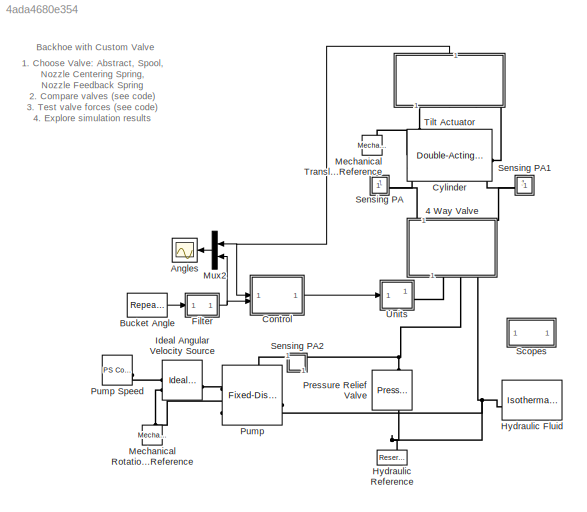
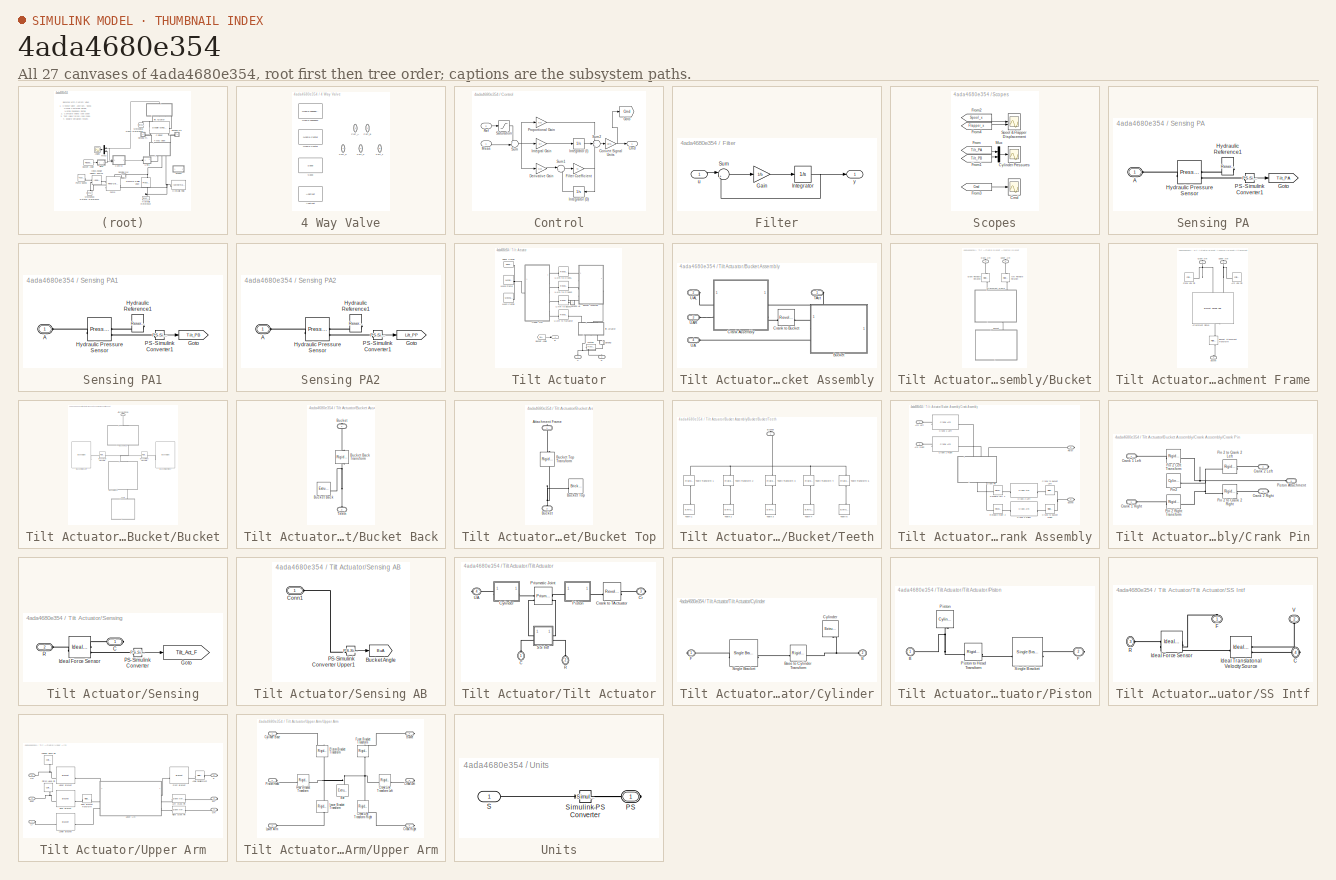
[diagram: thumbnail index - all 27 canvases of the model, root first then tree order]
MODEL slx_4ada4680e354
KIND model
CONFIG EnableMultiTasking = on
CONFIG MaxStep = 0.01
CONFIG PostLoadFcn = warning off Simulink:Engine:UsingDefaultMaxStepSize\nwarning off Simulink:blocks:MatchingFromNotFound\nwarning off Simulink:Engine:SaveWithParameterizedLinks_Warning\nwarning off Simulink:Engine:SolverMinStepNonlinearIterWarnForDAE\nwarning off Simulink:Commands:SetParamLinkChangeWarn\n
CONFIG PreLoadFcn = Abstract=Simulink.Variant('ValveType4way==1');\nSpool=Simulink.Variant('ValveType4way==2');\nNozzle_Center=Simulink.Variant('ValveType4way==3');\nNozzle_Feedback=Simulink.Variant('ValveType4way==4');\nValveType4way = 1;\n\nwarning('off','Simulink:Commands:LoadMdlParameterizedLink');
CONFIG SolverName = ode23t
CONFIG StopTime = 60
WORKSPACE source: mxarray member
WORKSPACE cylinderGray = [0.6 0.6 0.6]
WORKSPACE darkOrange = [0.8 0.5 0]
WORKSPACE glassBlue = [0.2 0.2 1]
WORKSPACE gray = [0.3 0.3 0.3]
WORKSPACE orange = [0.8 0.65 0]
WORKSPACE pistonGray = [0.4 0.4 0.4]
WORKSPACE rhoGlass = 2500
WORKSPACE rhoRubber = 1500
WORKSPACE rhoSteel = 7800
WORKSPACE tireBlack = [0.1 0.1 0.1]
WORKSPACE wheelGray = [0.6 0.6 0.6]
WORKSPACE yellow = [0.8 0.8 0]
BLOCK [SubSystem] 4 Way Valve
  AttributesFormatString = %<ActiveVariant>
  InitFcn = %temp_maskObj = Simulink.Mask.get(gcb);\n%temp_vt_h = temp_maskObj.getParameter('valvetype');\n%set_param(gcb,'valvetype',temp_vt_h.TypeOptions{ValveType4way});
  NameLocation = right
  Variant = on
BLOCK [Reference] 4 Way Valve/Abstract  REF=Custom_Valve_Variants_Lib/Abstract
  NameLocation = left
  SourceBlock = Custom_Valve_Variants_Lib/Abstract
  SourceType = Four-Way Valve
BLOCK [Reference] 4 Way Valve/Nozzle Center  REF=Custom_Valve_Variants_Lib/Nozzle
Center
  NameLocation = left
  SourceBlock = Custom_Valve_Variants_Lib/Nozzle\nCenter
  SourceType = Four-Way Servovalve, Centering Spring
BLOCK [Reference] 4 Way Valve/Nozzle Feedback  REF=Custom_Valve_Variants_Lib/Nozzle
Feedback
  NameLocation = left
  SourceBlock = Custom_Valve_Variants_Lib/Nozzle\nFeedback
  SourceType = Four-Way Servovalve, Flapper-Spool
BLOCK [PMIOPort] 4 Way Valve/Port_A
  NameLocation = left
  Port = 3
  Side = Left
BLOCK [PMIOPort] 4 Way Valve/Port_B
  NameLocation = right
  Port = 4
  Side = Left
BLOCK [PMIOPort] 4 Way Valve/Port_P
  NameLocation = left
  Port = 2
  Side = Right
BLOCK [PMIOPort] 4 Way Valve/Port_S
  NameLocation = left
  Side = Right
BLOCK [PMIOPort] 4 Way Valve/Port_T
  NameLocation = left
  Port = 5
  Side = Right
BLOCK [Reference] 4 Way Valve/Spool  REF=Custom_Valve_Variants_Lib/Spool
  NameLocation = left
  SourceBlock = Custom_Valve_Variants_Lib/Spool
  SourceType = Four-Way Valve with Spool
BLOCK [Scope] Angles
  ActiveDisplayYMaximum = 20
  ActiveDisplayYMinimum = -120
  DataLogging = on
  DataLoggingDecimation = 1
  DataLoggingSaveFormat = Structure With Time
  DataLoggingVariableName = Bucket_Angle_DATA
  Floating = off
  GraphicalSettings = {"Style":{"BackgroundColor":[0.4980392156862745,0.4980392156862745,0.4980392156862745],"AxesColor":[0,0,0],"LabelsColor":[1,1,1],"PreserveColors":false,"Visible":[true,true],"LineStyle":["-","-"],"LineWidth":[2,2],"BarWidth":[0.9,0.9],"LineColor":[[1,1,0],[1,0,1]],"LineFaceAlpha":[1,1],"LineEdgeAlpha":[1,1],"Marker":["none","none"],"FontSize":8.5,"LineTrueColor":[[1,1,0],[1,0,1]],"ChannelNames":["...<+1835ch>
  MultipleDisplayCache = [{"MaxYLimMag":10,"MaxYLimReal":20,"MinYLimMag":0,"MinYLimReal":-120,"PlotAsMagnitudePhase":false,"ShowGrid":true,"ShowLegend":false,"Title":"%<SignalLabel>","YLabel":""}]
  NumInputPorts = 1
  ScopeFrameLocation = window
  WasSavedAsWebScope = on
  WindowPosition = [680.000000,330.000000,560.000000,420.000000,]
BLOCK [Reference] Bucket Angle  REF=simulink/Sources/Repeating
Sequence
  SourceBlock = simulink/Sources/Repeating\nSequence
  SourceType = Repeating table
BLOCK [SubSystem] Control
BLOCK [Outport] Control/Cmd
  VectorParamsAs1DForOutWhenUnconnected = off
BLOCK [Gain] Control/Convert Signal Units
  Gain = 1e-5
BLOCK [Gain] Control/Derivative Gain
  Gain = Kd
BLOCK [Gain] Control/Filter Coefficient
  Gain = N
BLOCK [Goto] Control/Goto
  GotoTag = Cmd
  TagVisibility = global
BLOCK [Gain] Control/Integral Gain
  Gain = Ki
BLOCK [Integrator] Control/Integrator (D)
BLOCK [Integrator] Control/Integrator (I)
BLOCK [Inport] Control/Meas
BLOCK [Gain] Control/Proportional Gain
  Gain = Kp
BLOCK [Inport] Control/Ref
  NameLocation = top
  Port = 2
BLOCK [Saturate] Control/Saturation
  LowerLimit = lowerLim
  NameLocation = top
  UpperLimit = upperLim
BLOCK [Sum] Control/Sum
  Inputs = +-|
BLOCK [Sum] Control/Sum1
  Inputs = |+-
BLOCK [Sum] Control/Sum2
  Inputs = +++
BLOCK [Reference] Cylinder  REF=SimscapeFluids_lib/Isothermal Liquid/Actuators/Double-Acting
Actuator (IL)
  LibrarySourceBlock = sh_lib/Hydraulic Cylinders/Double-Acting\nHydraulic Cylinder
  SourceBlock = SimscapeFluids_lib/Isothermal Liquid/Actuators/Double-Acting\nActuator (IL)
  SourceType = Double-Acting\nActuator (IL)
  Tag = Factory Generic
BLOCK [SubSystem] Filter
BLOCK [Gain] Filter/Gain
  Gain = 1/b
BLOCK [Integrator] Filter/Integrator
  InitialCondition = x_initial
BLOCK [Sum] Filter/Sum
  Inputs = |+-
BLOCK [Inport] Filter/u
BLOCK [Outport] Filter/y
  VectorParamsAs1DForOutWhenUnconnected = off
BLOCK [Reference] Hydraulic Fluid  REF=fl_lib/Isothermal Liquid/Utilities/Isothermal Liquid
Properties (IL)
  LibrarySourceBlock = sh_lib/Hydraulic Utilities/Hydraulic Fluid
  SourceBlock = fl_lib/Isothermal Liquid/Utilities/Isothermal Liquid\nProperties (IL)
  SourceType = Isothermal Liquid\nProperties (IL)
BLOCK [Reference] Hydraulic Reference  REF=fl_lib/Isothermal Liquid/Elements/Reservoir (IL)
  LibrarySourceBlock = fl_lib/Hydraulic/Hydraulic Elements/Hydraulic Reference
  NameLocation = right
  SourceBlock = fl_lib/Isothermal Liquid/Elements/Reservoir (IL)
  SourceType = Reservoir (IL)
BLOCK [Reference] Ideal Angular Velocity Source  REF=fl_lib/Mechanical/Mechanical Sources/Ideal Angular
Velocity Source
  SourceBlock = fl_lib/Mechanical/Mechanical Sources/Ideal Angular\nVelocity Source
  SourceType = Ideal Angular\nVelocity Source
BLOCK [Reference] Mechanical Rotational Reference  REF=fl_lib/Mechanical/Rotational Elements/Mechanical
Rotational Reference
  NameLocation = right
  SourceBlock = fl_lib/Mechanical/Rotational Elements/Mechanical\nRotational Reference
  SourceType = Mechanical\nRotational Reference
BLOCK [Reference] Mechanical Translational Reference  REF=fl_lib/Mechanical/Translational
Elements/Mechanical
Translational
Reference
  SourceBlock = fl_lib/Mechanical/Translational\nElements/Mechanical\nTranslational\nReference
  SourceType = Mechanical\nTranslational\nReference
  Tag = Factory Generic
BLOCK [Mux] Mux2
  DisplayOption = bar
  Inputs = 2
  NameLocation = top
BLOCK [Reference] Pressure Relief Valve  REF=SimscapeFluids_lib/Isothermal Liquid/Valves & Orifices/Pressure Control
Valves/Pressure Relief
Valve (IL)
  LibrarySourceBlock = sh_lib/Valves/Pressure Control\nValves/Pressure Relief\nValve
  NameLocation = right
  SourceBlock = SimscapeFluids_lib/Isothermal Liquid/Valves & Orifices/Pressure Control\nValves/Pressure Relief\nValve (IL)
  SourceType = Pressure Relief\nValve (IL)
BLOCK [Reference] Pump  REF=SimscapeFluids_lib/Isothermal Liquid/Pumps & Motors/Fixed-Displacement
Pump (IL)
  LibrarySourceBlock = sh_lib/Pumps and Motors/Fixed-Displacement\nPump
  NameLocation = right
  SourceBlock = SimscapeFluids_lib/Isothermal Liquid/Pumps & Motors/Fixed-Displacement\nPump (IL)
  SourceType = Fixed-Displacement\nPump (IL)
BLOCK [Reference] Pump Speed  REF=fl_lib/Physical Signals/Sources/PS Constant
  SourceBlock = fl_lib/Physical Signals/Sources/PS Constant
  SourceType = PS Constant
BLOCK [SubSystem] Scopes
BLOCK [Scope] Scopes/Cmd
  ActiveDisplayYMaximum = 0.01213
  ActiveDisplayYMinimum = -0.01166
  DataLogging = on
  DataLoggingDecimateData = on
  DataLoggingDecimation = 1
  DataLoggingSaveFormat = Structure With Time
  DataLoggingVariableName = Bucket_Angle_DATA1
  Floating = off
  GraphicalSettings = {"GraphicalSettings":{"LegacySettings":true,"Style":{"AxesScalingProperties":{"ScaleAxesLimitsAtStop":false},"Style":{"AxesColor":"[0 0 0]","BackgroundColor":"[0.501960784313725 0.501960784313725 0.501960784313725]","ChannelNames":[""],"ColorOrder":"[1 0.909803921568627 0.392156862745098;0.149019607843137 0.549019607843137 0.866666666666667;0.96078431372549 0.466666666666667 0.16078431372549;0.286...<+669ch>
  MultipleDisplayCache = [{"MaxYLimMag":0.01213,"MaxYLimReal":0.01213,"MinYLimMag":0,"MinYLimReal":-0.01166,"PlotAsMagnitudePhase":false,"ShowGrid":true,"ShowLegend":false,"Title":"%<SignalLabel>","YLabel":""}]
  NumInputPorts = 1
  TimeSpan = 60
  WasSavedAsWebScope = on
BLOCK [Scope] Scopes/Cylinder Pressures
  ActiveDisplayYMaximum = 1.6E+7
  ActiveDisplayYMinimum = 1.1E+7
  DataLogging = on
  DataLoggingDecimateData = on
  DataLoggingDecimation = 1
  DataLoggingSaveFormat = Structure With Time
  DataLoggingVariableName = Cyl_Press_DATA
  Floating = off
  GraphicalSettings = {"GraphicalSettings":{"LegacySettings":true,"Style":{"AxesScalingProperties":{"ScaleAxesLimitsAtStop":false},"Style":{"AxesColor":"[0 0 0]","BackgroundColor":"[0.501960784313725 0.501960784313725 0.501960784313725]","ChannelNames":[""],"ColorOrder":"[1 0.909803921568627 0.392156862745098;0.149019607843137 0.549019607843137 0.866666666666667;0.96078431372549 0.466666666666667 0.16078431372549;0.286...<+669ch>
  MultipleDisplayCache = [{"MaxYLimMag":10,"MaxYLimReal":1.6E+7,"MinYLimMag":0,"MinYLimReal":1.1E+7,"PlotAsMagnitudePhase":false,"ShowGrid":true,"ShowLegend":false,"Title":"%<SignalLabel>","YLabel":""}]
  NumInputPorts = 1
  TimeSpan = 60
  WasSavedAsWebScope = on
  WindowPosition = [661 246 324 532]
BLOCK [From] Scopes/From
  CloseFcn = tagdialog Close
  GotoTag = Tilt_PA
  TagVisibility = global
BLOCK [From] Scopes/From1
  CloseFcn = tagdialog Close
  GotoTag = Tilt_PB
  TagVisibility = global
BLOCK [From] Scopes/From2
  CloseFcn = tagdialog Close
  GotoTag = Spool_x
  TagVisibility = global
BLOCK [From] Scopes/From3
  CloseFcn = tagdialog Close
  GotoTag = Cmd
  TagVisibility = global
BLOCK [From] Scopes/From4
  CloseFcn = tagdialog Close
  GotoTag = Flapper_x
  TagVisibility = global
BLOCK [Mux] Scopes/Mux
  DisplayOption = bar
  Inputs = 2
BLOCK [Scope] Scopes/Spool & Flapper Displacement
  DataLogging = on
  DataLoggingDecimateData = on
  DataLoggingDecimation = 1
  DataLoggingSaveFormat = Structure With Time
  DataLoggingVariableName = Spool_Disp_DATA
  Floating = off
  GraphicalSettings = {"GraphicalSettings":{"LegacySettings":true,"Style":{"AxesScalingProperties":{"ScaleAxesLimitsAtStop":false},"Style":{"AxesColor":"[0 0 0]","BackgroundColor":"[0.501960784313725 0.501960784313725 0.501960784313725]","ChannelNames":["",""],"ColorOrder":"[1 0.909803921568627 0.392156862745098;0.149019607843137 0.549019607843137 0.866666666666667;0.96078431372549 0.466666666666667 0.16078431372549;0....<+857ch>
  LayoutDimensionsString = [2 1]
  MultipleDisplayCache = [{"MaxYLimMag":10,"MaxYLimReal":10,"MinYLimMag":0,"MinYLimReal":-10,"PlotAsMagnitudePhase":false,"ShowGrid":true,"ShowLegend":false,"Title":"%<SignalLabel>","YLabel":""},{"MaxYLimMag":10,"MaxYLimReal":0.0015,"MinYLimMag":0,"MinYLimReal":-0.001,"PlotAsMagnitudePhase":false,"ShowGrid":true,"ShowLegend":false,"Title":"%<SignalLabel>","YLabel":""}]
  NumInputPorts = 2
  TimeSpan = 60
  WasSavedAsWebScope = on
BLOCK [SubSystem] Sensing PA
BLOCK [PMIOPort] Sensing PA/A
  Side = Left
BLOCK [Goto] Sensing PA/Goto
  GotoTag = Tilt_PA
  TagVisibility = global
BLOCK [Reference] Sensing PA/Hydraulic Pressure Sensor  REF=fl_lib/Isothermal Liquid/Sensors/Pressure Sensor (IL)
  LibrarySourceBlock = fl_lib/Hydraulic/Hydraulic Sensors/Hydraulic Pressure\nSensor
  SourceBlock = fl_lib/Isothermal Liquid/Sensors/Pressure Sensor (IL)
  SourceType = Pressure Sensor (IL)
BLOCK [Reference] Sensing PA/Hydraulic Reference1  REF=fl_lib/Isothermal Liquid/Elements/Reservoir (IL)
  LibrarySourceBlock = fl_lib/Hydraulic/Hydraulic Elements/Hydraulic Reference
  NameLocation = top
  SourceBlock = fl_lib/Isothermal Liquid/Elements/Reservoir (IL)
  SourceType = Reservoir (IL)
BLOCK [Reference] Sensing PA/PS-Simulink Converter1  REF=nesl_utility/PS-Simulink
Converter
  SourceBlock = nesl_utility/PS-Simulink\nConverter
  SourceType = PS-Simulink\nConverter
BLOCK [SubSystem] Sensing PA1
  NameLocation = top
BLOCK [PMIOPort] Sensing PA1/A
  Side = Left
BLOCK [Goto] Sensing PA1/Goto
  GotoTag = Tilt_PB
  TagVisibility = global
BLOCK [Reference] Sensing PA1/Hydraulic Pressure Sensor  REF=fl_lib/Isothermal Liquid/Sensors/Pressure Sensor (IL)
  LibrarySourceBlock = fl_lib/Hydraulic/Hydraulic Sensors/Hydraulic Pressure\nSensor
  SourceBlock = fl_lib/Isothermal Liquid/Sensors/Pressure Sensor (IL)
  SourceType = Pressure Sensor (IL)
BLOCK [Reference] Sensing PA1/Hydraulic Reference1  REF=fl_lib/Isothermal Liquid/Elements/Reservoir (IL)
  LibrarySourceBlock = fl_lib/Hydraulic/Hydraulic Elements/Hydraulic Reference
  NameLocation = top
  SourceBlock = fl_lib/Isothermal Liquid/Elements/Reservoir (IL)
  SourceType = Reservoir (IL)
BLOCK [Reference] Sensing PA1/PS-Simulink Converter1  REF=nesl_utility/PS-Simulink
Converter
  SourceBlock = nesl_utility/PS-Simulink\nConverter
  SourceType = PS-Simulink\nConverter
BLOCK [SubSystem] Sensing PA2
  NameLocation = right
BLOCK [PMIOPort] Sensing PA2/A
  Side = Left
BLOCK [Goto] Sensing PA2/Goto
  GotoTag = Lift_PP
  TagVisibility = global
BLOCK [Reference] Sensing PA2/Hydraulic Pressure Sensor  REF=fl_lib/Isothermal Liquid/Sensors/Pressure Sensor (IL)
  LibrarySourceBlock = fl_lib/Hydraulic/Hydraulic Sensors/Hydraulic Pressure\nSensor
  SourceBlock = fl_lib/Isothermal Liquid/Sensors/Pressure Sensor (IL)
  SourceType = Pressure Sensor (IL)
BLOCK [Reference] Sensing PA2/Hydraulic Reference1  REF=fl_lib/Isothermal Liquid/Elements/Reservoir (IL)
  LibrarySourceBlock = fl_lib/Hydraulic/Hydraulic Elements/Hydraulic Reference
  NameLocation = top
  SourceBlock = fl_lib/Isothermal Liquid/Elements/Reservoir (IL)
  SourceType = Reservoir (IL)
BLOCK [Reference] Sensing PA2/PS-Simulink Converter1  REF=nesl_utility/PS-Simulink
Converter
  SourceBlock = nesl_utility/PS-Simulink\nConverter
  SourceType = PS-Simulink\nConverter
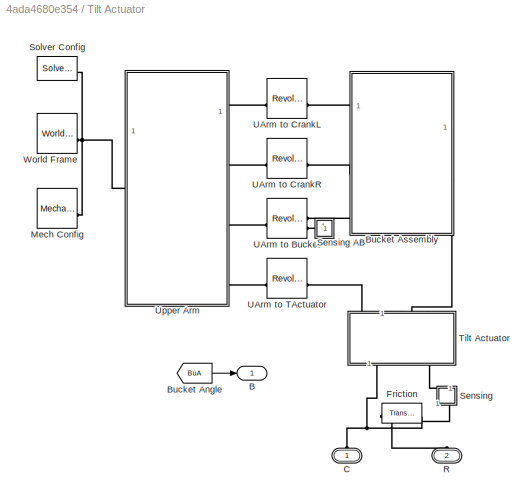
BLOCK [SubSystem] Tilt Actuator
  NameLocation = right
  Tag = PublishSubsystem
BLOCK [Outport] Tilt Actuator/B
  VectorParamsAs1DForOutWhenUnconnected = off
BLOCK [From] Tilt Actuator/Bucket Angle
  GotoTag = BuA
  TagVisibility = global
BLOCK [SubSystem] Tilt Actuator/Bucket Assembly
BLOCK [SubSystem] Tilt Actuator/Bucket Assembly/Bucket
BLOCK [Reference] Tilt Actuator/Bucket Assembly/Bucket/Arm Revolute Rotation  REF=sm_lib/Frames and
Transforms/Rigid
Transform
  NameLocation = right
  SourceBlock = sm_lib/Frames and\nTransforms/Rigid\nTransform
  SourceType = Rigid\nTransform
BLOCK [SubSystem] Tilt Actuator/Bucket Assembly/Bucket/Attachment Frame
  NameLocation = right
BLOCK [Reference] Tilt Actuator/Bucket Assembly/Bucket/Attachment Frame/Arm Link Pin  REF=sm_lib/Body Elements/Cylindrical Solid
  SourceBlock = sm_lib/Body Elements/Cylindrical Solid
  SourceType = Cylindrical Solid
BLOCK [Reference] Tilt Actuator/Bucket Assembly/Bucket/Attachment Frame/Attachment Plates  REF=Backhoe_Lib/Bracket Double Hole
  NameLocation = right
  SourceBlock = Backhoe_Lib/Bracket Double Hole
  SourceType = Bracket Double Hole
BLOCK [PMIOPort] Tilt Actuator/Bucket Assembly/Bucket/Attachment Frame/Bucket
  NameLocation = left
  Port = 3
  Side = Left
BLOCK [Reference] Tilt Actuator/Bucket Assembly/Bucket/Attachment Frame/Bucket Attachment Transform  REF=sm_lib/Frames and
Transforms/Rigid
Transform
  NameLocation = right
  SourceBlock = sm_lib/Frames and\nTransforms/Rigid\nTransform
  SourceType = Rigid\nTransform
BLOCK [PMIOPort] Tilt Actuator/Bucket Assembly/Bucket/Attachment Frame/Crank Arm
  NameLocation = left
  Side = Right
BLOCK [Reference] Tilt Actuator/Bucket Assembly/Bucket/Attachment Frame/Crank Link Pin  REF=sm_lib/Body Elements/Cylindrical Solid
  SourceBlock = sm_lib/Body Elements/Cylindrical Solid
  SourceType = Cylindrical Solid
BLOCK [PMIOPort] Tilt Actuator/Bucket Assembly/Bucket/Attachment Frame/Upper Arm
  NameLocation = right
  Port = 2
  Side = Right
BLOCK [SubSystem] Tilt Actuator/Bucket Assembly/Bucket/Bucket
  NameLocation = right
BLOCK [PMIOPort] Tilt Actuator/Bucket Assembly/Bucket/Bucket/Attachment Frame
  NameLocation = right
  Side = Right
BLOCK [SubSystem] Tilt Actuator/Bucket Assembly/Bucket/Bucket/Bucket Back
  NameLocation = right
BLOCK [PMIOPort] Tilt Actuator/Bucket Assembly/Bucket/Bucket/Bucket Back/Bucket
  NameLocation = right
  Side = Right
BLOCK [Reference] Tilt Actuator/Bucket Assembly/Bucket/Bucket/Bucket Back/Bucket Back  REF=sm_lib/Body Elements/Extruded Solid
  NameLocation = top
  SourceBlock = sm_lib/Body Elements/Extruded Solid
  SourceType = Extruded Solid
BLOCK [Reference] Tilt Actuator/Bucket Assembly/Bucket/Bucket/Bucket Back/Bucket Back Transform  REF=sm_lib/Frames and
Transforms/Rigid
Transform
  NameLocation = left
  SourceBlock = sm_lib/Frames and\nTransforms/Rigid\nTransform
  SourceType = Rigid\nTransform
BLOCK [PMIOPort] Tilt Actuator/Bucket Assembly/Bucket/Bucket/Bucket Back/Teeth
  NameLocation = right
  Port = 2
  Side = Left
BLOCK [Reference] Tilt Actuator/Bucket Assembly/Bucket/Bucket/Bucket Left Transform  REF=sm_lib/Frames and
Transforms/Rigid
Transform
  NameLocation = top
  SourceBlock = sm_lib/Frames and\nTransforms/Rigid\nTransform
  SourceType = Rigid\nTransform
BLOCK [Reference] Tilt Actuator/Bucket Assembly/Bucket/Bucket/Bucket Right Transform  REF=sm_lib/Frames and
Transforms/Rigid
Transform
  NameLocation = top
  SourceBlock = sm_lib/Frames and\nTransforms/Rigid\nTransform
  SourceType = Rigid\nTransform
BLOCK [Reference] Tilt Actuator/Bucket Assembly/Bucket/Bucket/Bucket Side Left  REF=Backhoe_Lib/Bucket Side
  SourceBlock = Backhoe_Lib/Bucket Side
  SourceType = Bucket Side
BLOCK [Reference] Tilt Actuator/Bucket Assembly/Bucket/Bucket/Bucket SideRight  REF=Backhoe_Lib/Bucket Side
  SourceBlock = Backhoe_Lib/Bucket Side
  SourceType = Bucket Side
BLOCK [SubSystem] Tilt Actuator/Bucket Assembly/Bucket/Bucket/Bucket Top
  NameLocation = right
BLOCK [PMIOPort] Tilt Actuator/Bucket Assembly/Bucket/Bucket/Bucket Top/Attachment Frame
  NameLocation = right
  Side = Right
BLOCK [PMIOPort] Tilt Actuator/Bucket Assembly/Bucket/Bucket/Bucket Top/Bucket
  NameLocation = right
  Port = 2
  Side = Left
BLOCK [Reference] Tilt Actuator/Bucket Assembly/Bucket/Bucket/Bucket Top/Bucket Top  REF=sm_lib/Body Elements/Brick Solid
  NameLocation = top
  SourceBlock = sm_lib/Body Elements/Brick Solid
  SourceType = Brick Solid
BLOCK [Reference] Tilt Actuator/Bucket Assembly/Bucket/Bucket/Bucket Top/Bucket Top Transform  REF=sm_lib/Frames and
Transforms/Rigid
Transform
  NameLocation = right
  SourceBlock = sm_lib/Frames and\nTransforms/Rigid\nTransform
  SourceType = Rigid\nTransform
BLOCK [SubSystem] Tilt Actuator/Bucket Assembly/Bucket/Bucket/Teeth
  NameLocation = right
BLOCK [PMIOPort] Tilt Actuator/Bucket Assembly/Bucket/Bucket/Teeth/Bucket
  NameLocation = right
  Side = Right
BLOCK [Reference] Tilt Actuator/Bucket Assembly/Bucket/Bucket/Teeth/Tooth 1  REF=sm_lib/Body Elements/Extruded Solid
  NameLocation = left
  SourceBlock = sm_lib/Body Elements/Extruded Solid
  SourceType = Extruded Solid
BLOCK [Reference] Tilt Actuator/Bucket Assembly/Bucket/Bucket/Teeth/Tooth 2  REF=sm_lib/Body Elements/Extruded Solid
  NameLocation = left
  SourceBlock = sm_lib/Body Elements/Extruded Solid
  SourceType = Extruded Solid
BLOCK [Reference] Tilt Actuator/Bucket Assembly/Bucket/Bucket/Teeth/Tooth 3  REF=sm_lib/Body Elements/Extruded Solid
  NameLocation = left
  SourceBlock = sm_lib/Body Elements/Extruded Solid
  SourceType = Extruded Solid
BLOCK [Reference] Tilt Actuator/Bucket Assembly/Bucket/Bucket/Teeth/Tooth 4  REF=sm_lib/Body Elements/Extruded Solid
  NameLocation = left
  SourceBlock = sm_lib/Body Elements/Extruded Solid
  SourceType = Extruded Solid
BLOCK [Reference] Tilt Actuator/Bucket Assembly/Bucket/Bucket/Teeth/Tooth 5  REF=sm_lib/Body Elements/Extruded Solid
  NameLocation = left
  SourceBlock = sm_lib/Body Elements/Extruded Solid
  SourceType = Extruded Solid
BLOCK [Reference] Tilt Actuator/Bucket Assembly/Bucket/Bucket/Teeth/Tooth Transform 1  REF=sm_lib/Frames and
Transforms/Rigid
Transform
  NameLocation = left
  SourceBlock = sm_lib/Frames and\nTransforms/Rigid\nTransform
  SourceType = Rigid\nTransform
BLOCK [Reference] Tilt Actuator/Bucket Assembly/Bucket/Bucket/Teeth/Tooth Transform 2  REF=sm_lib/Frames and
Transforms/Rigid
Transform
  NameLocation = left
  SourceBlock = sm_lib/Frames and\nTransforms/Rigid\nTransform
  SourceType = Rigid\nTransform
BLOCK [Reference] Tilt Actuator/Bucket Assembly/Bucket/Bucket/Teeth/Tooth Transform 3  REF=sm_lib/Frames and
Transforms/Rigid
Transform
  NameLocation = left
  SourceBlock = sm_lib/Frames and\nTransforms/Rigid\nTransform
  SourceType = Rigid\nTransform
BLOCK [Reference] Tilt Actuator/Bucket Assembly/Bucket/Bucket/Teeth/Tooth Transform 4  REF=sm_lib/Frames and
Transforms/Rigid
Transform
  NameLocation = left
  SourceBlock = sm_lib/Frames and\nTransforms/Rigid\nTransform
  SourceType = Rigid\nTransform
BLOCK [Reference] Tilt Actuator/Bucket Assembly/Bucket/Bucket/Teeth/Tooth Transform 5  REF=sm_lib/Frames and
Transforms/Rigid
Transform
  NameLocation = left
  SourceBlock = sm_lib/Frames and\nTransforms/Rigid\nTransform
  SourceType = Rigid\nTransform
BLOCK [PMIOPort] Tilt Actuator/Bucket Assembly/Bucket/Crank Arm
  NameLocation = left
  Side = Right
BLOCK [Reference] Tilt Actuator/Bucket Assembly/Bucket/Crank Revolute Rotation  REF=sm_lib/Frames and
Transforms/Rigid
Transform
  NameLocation = left
  SourceBlock = sm_lib/Frames and\nTransforms/Rigid\nTransform
  SourceType = Rigid\nTransform
BLOCK [PMIOPort] Tilt Actuator/Bucket Assembly/Bucket/Upper Arm
  NameLocation = right
  Port = 2
  Side = Right
BLOCK [SubSystem] Tilt Actuator/Bucket Assembly/Crank Assembly
BLOCK [PMIOPort] Tilt Actuator/Bucket Assembly/Crank Assembly/Arm Left
  Side = Left
BLOCK [PMIOPort] Tilt Actuator/Bucket Assembly/Crank Assembly/Arm Right
  NameLocation = top
  Port = 2
  Side = Left
BLOCK [PMIOPort] Tilt Actuator/Bucket Assembly/Crank Assembly/Bucket
  Port = 4
  Side = Right
BLOCK [Reference] Tilt Actuator/Bucket Assembly/Crank Assembly/Crank 1 Left  REF=Backhoe_Lib/Crank Arm
  NameLocation = top
  SourceBlock = Backhoe_Lib/Crank Arm
  SourceType = Crank Arm
BLOCK [Reference] Tilt Actuator/Bucket Assembly/Crank Assembly/Crank 1 Right  REF=Backhoe_Lib/Crank Arm
  SourceBlock = Backhoe_Lib/Crank Arm
  SourceType = Crank Arm
BLOCK [Reference] Tilt Actuator/Bucket Assembly/Crank Assembly/Crank 2 Left  REF=Backhoe_Lib/Crank Arm
  NameLocation = top
  SourceBlock = Backhoe_Lib/Crank Arm
  SourceType = Crank Arm
BLOCK [Reference] Tilt Actuator/Bucket Assembly/Crank Assembly/Crank 2 Right  REF=Backhoe_Lib/Crank Arm
  SourceBlock = Backhoe_Lib/Crank Arm
  SourceType = Crank Arm
BLOCK [SubSystem] Tilt Actuator/Bucket Assembly/Crank Assembly/Crank Pin
  NameLocation = right
BLOCK [PMIOPort] Tilt Actuator/Bucket Assembly/Crank Assembly/Crank Pin/Crank 1 Left
  NameLocation = top
  Side = Left
BLOCK [PMIOPort] Tilt Actuator/Bucket Assembly/Crank Assembly/Crank Pin/Crank 1 Right
  NameLocation = top
  Port = 2
  Side = Left
BLOCK [PMIOPort] Tilt Actuator/Bucket Assembly/Crank Assembly/Crank Pin/Crank 2 Left
  Port = 3
  Side = Right
BLOCK [PMIOPort] Tilt Actuator/Bucket Assembly/Crank Assembly/Crank Pin/Crank 2 Right
  Port = 4
  Side = Right
BLOCK [Reference] Tilt Actuator/Bucket Assembly/Crank Assembly/Crank Pin/Pin 2 Left Transform  REF=sm_lib/Frames and
Transforms/Rigid
Transform
  NameLocation = top
  SourceBlock = sm_lib/Frames and\nTransforms/Rigid\nTransform
  SourceType = Rigid\nTransform
BLOCK [Reference] Tilt Actuator/Bucket Assembly/Crank Assembly/Crank Pin/Pin 2 Right Transform  REF=sm_lib/Frames and
Transforms/Rigid
Transform
  SourceBlock = sm_lib/Frames and\nTransforms/Rigid\nTransform
  SourceType = Rigid\nTransform
BLOCK [Reference] Tilt Actuator/Bucket Assembly/Crank Assembly/Crank Pin/Pin 2 to Crank 2 Left  REF=sm_lib/Frames and
Transforms/Rigid
Transform
  NameLocation = top
  SourceBlock = sm_lib/Frames and\nTransforms/Rigid\nTransform
  SourceType = Rigid\nTransform
BLOCK [Reference] Tilt Actuator/Bucket Assembly/Crank Assembly/Crank Pin/Pin 2 to Crank 2 Right  REF=sm_lib/Frames and
Transforms/Rigid
Transform
  SourceBlock = sm_lib/Frames and\nTransforms/Rigid\nTransform
  SourceType = Rigid\nTransform
BLOCK [Reference] Tilt Actuator/Bucket Assembly/Crank Assembly/Crank Pin/Pin2  REF=sm_lib/Body Elements/Cylindrical Solid
  NameLocation = top
  SourceBlock = sm_lib/Body Elements/Cylindrical Solid
  SourceType = Cylindrical Solid
BLOCK [PMIOPort] Tilt Actuator/Bucket Assembly/Crank Assembly/Crank Pin/Piston Attachment
  Port = 5
  Side = Left
BLOCK [Reference] Tilt Actuator/Bucket Assembly/Crank Assembly/Crank to Bucket Left  REF=sm_lib/Frames and
Transforms/Rigid
Transform
  NameLocation = top
  SourceBlock = sm_lib/Frames and\nTransforms/Rigid\nTransform
  SourceType = Rigid\nTransform
BLOCK [Reference] Tilt Actuator/Bucket Assembly/Crank Assembly/Crank to Bucket Right  REF=sm_lib/Frames and
Transforms/Rigid
Transform
  SourceBlock = sm_lib/Frames and\nTransforms/Rigid\nTransform
  SourceType = Rigid\nTransform
BLOCK [PMIOPort] Tilt Actuator/Bucket Assembly/Crank Assembly/Piston
  Port = 3
  Side = Right
BLOCK [Reference] Tilt Actuator/Bucket Assembly/Crank Assembly/Revolute Left 2  REF=sm_lib/Joints/Revolute Joint
  SourceBlock = sm_lib/Joints/Revolute Joint
  SourceType = Revolute Joint
BLOCK [Reference] Tilt Actuator/Bucket Assembly/Crank Assembly/Revolute Right 2  REF=sm_lib/Joints/Revolute Joint
  SourceBlock = sm_lib/Joints/Revolute Joint
  SourceType = Revolute Joint
BLOCK [Reference] Tilt Actuator/Bucket Assembly/Crank to Bucket  REF=sm_lib/Joints/Revolute Joint
  SourceBlock = sm_lib/Joints/Revolute Joint
  SourceType = Revolute Joint
BLOCK [PMIOPort] Tilt Actuator/Bucket Assembly/TAct
  NameLocation = top
  Side = Right
BLOCK [PMIOPort] Tilt Actuator/Bucket Assembly/UA
  Port = 4
  Side = Left
BLOCK [PMIOPort] Tilt Actuator/Bucket Assembly/UAL
  Port = 2
  Side = Left
BLOCK [PMIOPort] Tilt Actuator/Bucket Assembly/UAR
  Port = 3
  Side = Left
BLOCK [PMIOPort] Tilt Actuator/C
  NameLocation = left
  Side = Left
BLOCK [Reference] Tilt Actuator/Friction  REF=fl_lib/Mechanical/Translational
Elements/Translational
Friction
  SourceBlock = fl_lib/Mechanical/Translational\nElements/Translational\nFriction
  SourceType = Translational\nFriction
BLOCK [Reference] Tilt Actuator/Mech Config  REF=sm_lib/Utilities/Mechanism
Configuration
  SourceBlock = sm_lib/Utilities/Mechanism\nConfiguration
  SourceType = Mechanism\nConfiguration
BLOCK [PMIOPort] Tilt Actuator/R
  NameLocation = left
  Port = 2
  Side = Left
BLOCK [SubSystem] Tilt Actuator/Sensing
  NameLocation = left
BLOCK [SubSystem] Tilt Actuator/Sensing AB
BLOCK [Goto] Tilt Actuator/Sensing AB/Bucket Angle
  GotoTag = BuA
  TagVisibility = global
BLOCK [PMIOPort] Tilt Actuator/Sensing AB/Conn1
  Side = Left
BLOCK [Reference] Tilt Actuator/Sensing AB/PS-Simulink Converter Upper1  REF=nesl_utility/PS-Simulink
Converter
  SourceBlock = nesl_utility/PS-Simulink\nConverter
  SourceType = PS-Simulink\nConverter
BLOCK [PMIOPort] Tilt Actuator/Sensing/C
  Side = Right
BLOCK [Goto] Tilt Actuator/Sensing/Goto
  GotoTag = Tilt_Act_F
  TagVisibility = global
BLOCK [Reference] Tilt Actuator/Sensing/Ideal Force Sensor  REF=fl_lib/Mechanical/Mechanical Sensors/Ideal Force Sensor
  SourceBlock = fl_lib/Mechanical/Mechanical Sensors/Ideal Force Sensor
  SourceType = Ideal Force Sensor
BLOCK [Reference] Tilt Actuator/Sensing/PS-Simulink Converter  REF=nesl_utility/PS-Simulink
Converter
  SourceBlock = nesl_utility/PS-Simulink\nConverter
  SourceType = PS-Simulink\nConverter
BLOCK [PMIOPort] Tilt Actuator/Sensing/R
  Port = 2
  Side = Left
BLOCK [Reference] Tilt Actuator/Solver Config  REF=nesl_utility/Solver
Configuration
  SourceBlock = nesl_utility/Solver\nConfiguration
  SourceType = Solver\nConfiguration
BLOCK [SubSystem] Tilt Actuator/Tilt Actuator
  NameLocation = left
BLOCK [PMIOPort] Tilt Actuator/Tilt Actuator/C
  NameLocation = left
  Side = Left
BLOCK [PMIOPort] Tilt Actuator/Tilt Actuator/Cr
  Port = 3
  Side = Right
BLOCK [Reference] Tilt Actuator/Tilt Actuator/Crank to TActuator  REF=sm_lib/Joints/Revolute Joint
  SourceBlock = sm_lib/Joints/Revolute Joint
  SourceType = Revolute Joint
BLOCK [SubSystem] Tilt Actuator/Tilt Actuator/Cylinder
BLOCK [PMIOPort] Tilt Actuator/Tilt Actuator/Cylinder/B
  NameLocation = top
  Port = 2
  Side = Left
BLOCK [Reference] Tilt Actuator/Tilt Actuator/Cylinder/Base to Cylinder Transform  REF=sm_lib/Frames and
Transforms/Rigid
Transform
  SourceBlock = sm_lib/Frames and\nTransforms/Rigid\nTransform
  SourceType = Rigid\nTransform
BLOCK [Reference] Tilt Actuator/Tilt Actuator/Cylinder/Cylinder  REF=sm_lib/Body Elements/Extruded Solid
  NameLocation = left
  SourceBlock = sm_lib/Body Elements/Extruded Solid
  SourceType = Extruded Solid
BLOCK [PMIOPort] Tilt Actuator/Tilt Actuator/Cylinder/F
  NameLocation = top
  Side = Right
BLOCK [Reference] Tilt Actuator/Tilt Actuator/Cylinder/Single Bracket  REF=Backhoe_Lib/Single Bracket
  NameLocation = top
  SourceBlock = Backhoe_Lib/Single Bracket
  SourceType = Single Bracket
BLOCK [SubSystem] Tilt Actuator/Tilt Actuator/Piston
BLOCK [PMIOPort] Tilt Actuator/Tilt Actuator/Piston/B
  NameLocation = top
  Side = Left
BLOCK [PMIOPort] Tilt Actuator/Tilt Actuator/Piston/F
  NameLocation = top
  Port = 2
  Side = Right
BLOCK [Reference] Tilt Actuator/Tilt Actuator/Piston/Piston  REF=sm_lib/Body Elements/Cylindrical Solid
  NameLocation = left
  SourceBlock = sm_lib/Body Elements/Cylindrical Solid
  SourceType = Cylindrical Solid
BLOCK [Reference] Tilt Actuator/Tilt Actuator/Piston/Piston to Head Transform  REF=sm_lib/Frames and
Transforms/Rigid
Transform
  SourceBlock = sm_lib/Frames and\nTransforms/Rigid\nTransform
  SourceType = Rigid\nTransform
BLOCK [Reference] Tilt Actuator/Tilt Actuator/Piston/Single Bracket  REF=Backhoe_Lib/Single Bracket
  SourceBlock = Backhoe_Lib/Single Bracket
  SourceType = Single Bracket
BLOCK [Reference] Tilt Actuator/Tilt Actuator/Prismatic  Joint  REF=sm_lib/Joints/Prismatic
Joint
  SourceBlock = sm_lib/Joints/Prismatic\nJoint
  SourceType = Prismatic\nJoint
BLOCK [PMIOPort] Tilt Actuator/Tilt Actuator/R
  NameLocation = left
  Port = 2
  Side = Left
BLOCK [SubSystem] Tilt Actuator/Tilt Actuator/SS Intf
BLOCK [PMIOPort] Tilt Actuator/Tilt Actuator/SS Intf/C
  Port = 4
  Side = Right
BLOCK [PMIOPort] Tilt Actuator/Tilt Actuator/SS Intf/F
  NameLocation = left
  Side = Right
BLOCK [Reference] Tilt Actuator/Tilt Actuator/SS Intf/Ideal Force Sensor  REF=fl_lib/Mechanical/Mechanical Sensors/Ideal Force Sensor
  NameLocation = top
  SourceBlock = fl_lib/Mechanical/Mechanical Sensors/Ideal Force Sensor
  SourceType = Ideal Force Sensor
BLOCK [Reference] Tilt Actuator/Tilt Actuator/SS Intf/Ideal Translational Velocity Source  REF=fl_lib/Mechanical/Mechanical Sources/Ideal Translational
Velocity Source
  SourceBlock = fl_lib/Mechanical/Mechanical Sources/Ideal Translational\nVelocity Source
  SourceType = Ideal Translational\nVelocity Source
BLOCK [PMIOPort] Tilt Actuator/Tilt Actuator/SS Intf/R
  Port = 3
  Side = Left
BLOCK [PMIOPort] Tilt Actuator/Tilt Actuator/SS Intf/V
  NameLocation = left
  Port = 2
  Side = Left
BLOCK [PMIOPort] Tilt Actuator/Tilt Actuator/UA
  NameLocation = top
  Port = 4
  Side = Right
BLOCK [Reference] Tilt Actuator/UArm to Bucket  REF=sm_lib/Joints/Revolute Joint
  SourceBlock = sm_lib/Joints/Revolute Joint
  SourceType = Revolute Joint
BLOCK [Reference] Tilt Actuator/UArm to CrankL  REF=sm_lib/Joints/Revolute Joint
  SourceBlock = sm_lib/Joints/Revolute Joint
  SourceType = Revolute Joint
BLOCK [Reference] Tilt Actuator/UArm to CrankR  REF=sm_lib/Joints/Revolute Joint
  SourceBlock = sm_lib/Joints/Revolute Joint
  SourceType = Revolute Joint
BLOCK [Reference] Tilt Actuator/UArm to TActuator  REF=sm_lib/Joints/Revolute Joint
  SourceBlock = sm_lib/Joints/Revolute Joint
  SourceType = Revolute Joint
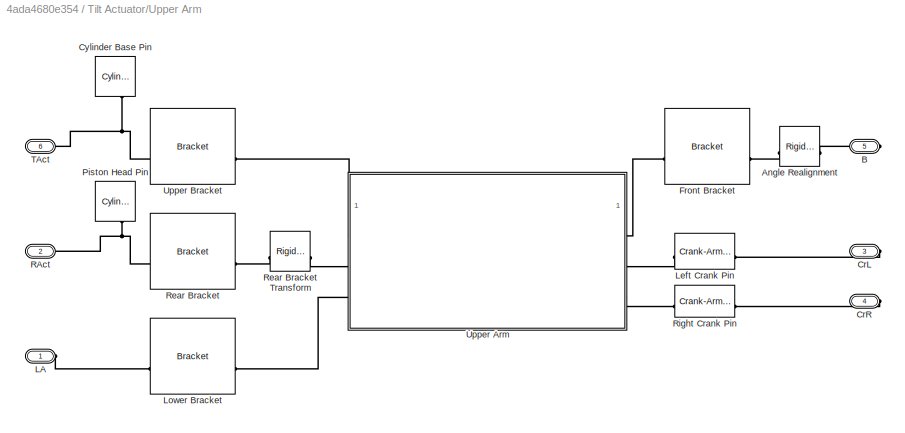
BLOCK [SubSystem] Tilt Actuator/Upper Arm
BLOCK [Reference] Tilt Actuator/Upper Arm/Angle Realignment  REF=sm_lib/Frames and
Transforms/Rigid
Transform
  NameLocation = top
  SourceBlock = sm_lib/Frames and\nTransforms/Rigid\nTransform
  SourceType = Rigid\nTransform
BLOCK [PMIOPort] Tilt Actuator/Upper Arm/B
  Port = 5
  Side = Right
BLOCK [PMIOPort] Tilt Actuator/Upper Arm/CrL
  Port = 3
  Side = Right
BLOCK [PMIOPort] Tilt Actuator/Upper Arm/CrR
  Port = 4
  Side = Right
BLOCK [Reference] Tilt Actuator/Upper Arm/Cylinder Base Pin  REF=sm_lib/Body Elements/Cylindrical Solid
  NameLocation = left
  SourceBlock = sm_lib/Body Elements/Cylindrical Solid
  SourceType = Cylindrical Solid
BLOCK [Reference] Tilt Actuator/Upper Arm/Front Bracket  REF=Backhoe_Lib/Bracket
  NameLocation = top
  SourceBlock = Backhoe_Lib/Bracket
  SourceType = Bracket
BLOCK [PMIOPort] Tilt Actuator/Upper Arm/LA
  Side = Left
BLOCK [Reference] Tilt Actuator/Upper Arm/Left Crank Pin  REF=Backhoe_Lib/Crank-Arm Pin
  NameLocation = top
  SourceBlock = Backhoe_Lib/Crank-Arm Pin
  SourceType = Crank Pin
BLOCK [Reference] Tilt Actuator/Upper Arm/Lower Bracket  REF=Backhoe_Lib/Bracket
  SourceBlock = Backhoe_Lib/Bracket
  SourceType = Bracket
BLOCK [Reference] Tilt Actuator/Upper Arm/Piston Head Pin  REF=sm_lib/Body Elements/Cylindrical Solid
  NameLocation = left
  SourceBlock = sm_lib/Body Elements/Cylindrical Solid
  SourceType = Cylindrical Solid
BLOCK [PMIOPort] Tilt Actuator/Upper Arm/RAct
  Port = 2
  Side = Left
BLOCK [Reference] Tilt Actuator/Upper Arm/Rear Bracket  REF=Backhoe_Lib/Bracket
  SourceBlock = Backhoe_Lib/Bracket
  SourceType = Bracket
BLOCK [Reference] Tilt Actuator/Upper Arm/Rear Bracket Transform  REF=sm_lib/Frames and
Transforms/Rigid
Transform
  SourceBlock = sm_lib/Frames and\nTransforms/Rigid\nTransform
  SourceType = Rigid\nTransform
BLOCK [Reference] Tilt Actuator/Upper Arm/Right Crank Pin  REF=Backhoe_Lib/Crank-Arm Pin
  SourceBlock = Backhoe_Lib/Crank-Arm Pin
  SourceType = Crank Pin
BLOCK [PMIOPort] Tilt Actuator/Upper Arm/TAct
  Port = 6
  Side = Right
BLOCK [SubSystem] Tilt Actuator/Upper Arm/Upper Arm
BLOCK [Reference] Tilt Actuator/Upper Arm/Upper Arm/Bar  REF=sm_lib/Body Elements/Extruded Solid
  NameLocation = right
  SourceBlock = sm_lib/Body Elements/Extruded Solid
  SourceType = Extruded Solid
BLOCK [PMIOPort] Tilt Actuator/Upper Arm/Upper Arm/Bucket
  Port = 4
  Side = Right
BLOCK [PMIOPort] Tilt Actuator/Upper Arm/Upper Arm/Crank Left
  NameLocation = top
  Port = 5
  Side = Right
BLOCK [Reference] Tilt Actuator/Upper Arm/Upper Arm/Crank Link Transform Left  REF=sm_lib/Frames and
Transforms/Rigid
Transform
  SourceBlock = sm_lib/Frames and\nTransforms/Rigid\nTransform
  SourceType = Rigid\nTransform
BLOCK [Reference] Tilt Actuator/Upper Arm/Upper Arm/Crank Link Transform Right  REF=sm_lib/Frames and
Transforms/Rigid
Transform
  NameLocation = right
  SourceBlock = sm_lib/Frames and\nTransforms/Rigid\nTransform
  SourceType = Rigid\nTransform
BLOCK [PMIOPort] Tilt Actuator/Upper Arm/Upper Arm/Crank Right
  Port = 6
  Side = Right
BLOCK [PMIOPort] Tilt Actuator/Upper Arm/Upper Arm/Cylinder Base
  NameLocation = top
  Side = Left
BLOCK [Reference] Tilt Actuator/Upper Arm/Upper Arm/Front Bracket Transform  REF=sm_lib/Frames and
Transforms/Rigid
Transform
  NameLocation = right
  SourceBlock = sm_lib/Frames and\nTransforms/Rigid\nTransform
  SourceType = Rigid\nTransform
BLOCK [PMIOPort] Tilt Actuator/Upper Arm/Upper Arm/Lower Arm
  NameLocation = top
  Port = 3
  Side = Left
BLOCK [Reference] Tilt Actuator/Upper Arm/Upper Arm/Lower Bracket Transform  REF=sm_lib/Frames and
Transforms/Rigid
Transform
  NameLocation = left
  SourceBlock = sm_lib/Frames and\nTransforms/Rigid\nTransform
  SourceType = Rigid\nTransform
BLOCK [Reference] Tilt Actuator/Upper Arm/Upper Arm/Piston Bracket Transform  REF=sm_lib/Frames and
Transforms/Rigid
Transform
  NameLocation = left
  SourceBlock = sm_lib/Frames and\nTransforms/Rigid\nTransform
  SourceType = Rigid\nTransform
BLOCK [PMIOPort] Tilt Actuator/Upper Arm/Upper Arm/Piston Head
  NameLocation = top
  Port = 2
  Side = Left
BLOCK [Reference] Tilt Actuator/Upper Arm/Upper Arm/Rear Bracket Transform  REF=sm_lib/Frames and
Transforms/Rigid
Transform
  NameLocation = top
  SourceBlock = sm_lib/Frames and\nTransforms/Rigid\nTransform
  SourceType = Rigid\nTransform
BLOCK [Reference] Tilt Actuator/Upper Arm/Upper Bracket  REF=Backhoe_Lib/Bracket
  NameLocation = top
  SourceBlock = Backhoe_Lib/Bracket
  SourceType = Bracket
BLOCK [Reference] Tilt Actuator/World Frame  REF=sm_lib/Frames and
Transforms/World Frame
  SourceBlock = sm_lib/Frames and\nTransforms/World Frame
  SourceType = World Frame
BLOCK [SubSystem] Units
BLOCK [PMIOPort] Units/PS
  Side = Right
BLOCK [Inport] Units/S
BLOCK [Reference] Units/Simulink-PS Converter  REF=nesl_utility/Simulink-PS
Converter
  SourceBlock = nesl_utility/Simulink-PS\nConverter
  SourceType = Simulink-PS\nConverter
ANNOTATION (root): 1. Choose Valve: Abstract , Spool , Nozzle Centering Spring , Nozzle Feedback Spring 2. Compare valves ( see code ) 3. Test valve forces ( see code ) 4. Explore simulation results 5. Open Demo Script 6. Learn more about this example
ANNOTATION (root): Backhoe with Custom Valve
LINE Bucket Angle:1 -> Filter:1
NET Control/Convert Signal Units:1 -> Control/Cmd:1, Control/Goto:1
LINE Control/Derivative Gain:1 -> Control/Sum1:1
NET Control/Filter Coefficient:1 -> Control/Integrator (D):1, Control/Sum2:3
LINE Control/Integral Gain:1 -> Control/Integrator (I):1
LINE Control/Integrator (D):1 -> Control/Sum1:2
LINE Control/Integrator (I):1 -> Control/Sum2:2
LINE Control/Meas:1 -> Control/Sum:2
LINE Control/Proportional Gain:1 -> Control/Sum2:1
LINE Control/Ref:1 -> Control/Saturation:1
LINE Control/Saturation:1 -> Control/Sum:1
LINE Control/Sum1:1 -> Control/Filter Coefficient:1
LINE Control/Sum2:1 -> Control/Convert Signal Units:1
NET Control/Sum:1 -> Control/Derivative Gain:1, Control/Integral Gain:1, Control/Proportional Gain:1
LINE Control:1 -> Units:1
LINE Filter/Gain:1 -> Filter/Integrator:1
NET Filter/Integrator:1 -> Filter/Sum:2, Filter/y:1
LINE Filter/Sum:1 -> Filter/Gain:1
LINE Filter/u:1 -> Filter/Sum:1
NET Filter:1 -> Control:2, Mux2:2
LINE Mux2:1 -> Angles:1
LINE Scopes/From1:1 -> Scopes/Mux:2
LINE Scopes/From2:1 -> Scopes/Spool & Flapper Displacement:1
LINE Scopes/From3:1 -> Scopes/Cmd:1
LINE Scopes/From4:1 -> Scopes/Spool & Flapper Displacement:2
LINE Scopes/From:1 -> Scopes/Mux:1
LINE Scopes/Mux:1 -> Scopes/Cylinder Pressures:1
LINE Sensing PA/PS-Simulink Converter1:1 -> Sensing PA/Goto:1
LINE Sensing PA1/PS-Simulink Converter1:1 -> Sensing PA1/Goto:1
LINE Sensing PA2/PS-Simulink Converter1:1 -> Sensing PA2/Goto:1
LINE Tilt Actuator/Bucket Angle:1 -> Tilt Actuator/B:1
LINE Tilt Actuator/Sensing AB/PS-Simulink Converter Upper1:1 -> Tilt Actuator/Sensing AB/Bucket Angle:1
LINE Tilt Actuator/Sensing/PS-Simulink Converter:1 -> Tilt Actuator/Sensing/Goto:1
NET Tilt Actuator:1 -> Control:1, Mux2:1
LINE Units/S:1 -> Units/Simulink-PS Converter:1
PNET net1: 4 Way Valve:LConn1 -- Cylinder:LConn2 -- Sensing PA:LConn1
PNET net2: 4 Way Valve:LConn2 -- Cylinder:RConn3 -- Sensing PA1:LConn1
PLINE 4 Way Valve:RConn1 -- Units:RConn1
PNET net3: 4 Way Valve:RConn2 -- Pressure Relief Valve:LConn1 -- Pump:LConn1 -- Sensing PA2:LConn1
PNET net4: 4 Way Valve:RConn3 -- Hydraulic Fluid:RConn1 -- Hydraulic Reference:LConn1 -- Pressure Relief Valve:RConn1 -- Pump:RConn3
PNET net5: Cylinder:LConn1 -- Mechanical Translational Reference:LConn1 -- Tilt Actuator:LConn1
PLINE Cylinder:RConn2 -- Tilt Actuator:LConn2
PLINE Ideal Angular Velocity Source:LConn1 -- Pump:RConn1
PLINE Ideal Angular Velocity Source:RConn1 -- Pump Speed:RConn1
PNET net6: Ideal Angular Velocity Source:RConn2 -- Mechanical Rotational Reference:LConn1 -- Pump:RConn2
PLINE Sensing PA/A:RConn1 -- Sensing PA/Hydraulic Pressure Sensor:LConn1
PLINE Sensing PA/Hydraulic Pressure Sensor:RConn1 -- Sensing PA/Hydraulic Reference1:LConn1
PLINE Sensing PA/Hydraulic Pressure Sensor:RConn2 -- Sensing PA/PS-Simulink Converter1:LConn1
PLINE Sensing PA1/A:RConn1 -- Sensing PA1/Hydraulic Pressure Sensor:LConn1
PLINE Sensing PA1/Hydraulic Pressure Sensor:RConn1 -- Sensing PA1/Hydraulic Reference1:LConn1
PLINE Sensing PA1/Hydraulic Pressure Sensor:RConn2 -- Sensing PA1/PS-Simulink Converter1:LConn1
PLINE Sensing PA2/A:RConn1 -- Sensing PA2/Hydraulic Pressure Sensor:LConn1
PLINE Sensing PA2/Hydraulic Pressure Sensor:RConn1 -- Sensing PA2/Hydraulic Reference1:LConn1
PLINE Sensing PA2/Hydraulic Pressure Sensor:RConn2 -- Sensing PA2/PS-Simulink Converter1:LConn1
PLINE Tilt Actuator/Bucket Assembly/Bucket/Arm Revolute Rotation:LConn1 -- Tilt Actuator/Bucket Assembly/Bucket/Attachment Frame:RConn2
PLINE Tilt Actuator/Bucket Assembly/Bucket/Arm Revolute Rotation:RConn1 -- Tilt Actuator/Bucket Assembly/Bucket/Upper Arm:RConn1
PNET net7: Tilt Actuator/Bucket Assembly/Bucket/Attachment Frame/Arm Link Pin:RConn1 -- Tilt Actuator/Bucket Assembly/Bucket/Attachment Frame/Attachment Plates:RConn2 -- Tilt Actuator/Bucket Assembly/Bucket/Attachment Frame/Upper Arm:RConn1
PLINE Tilt Actuator/Bucket Assembly/Bucket/Attachment Frame/Attachment Plates:LConn1 -- Tilt Actuator/Bucket Assembly/Bucket/Attachment Frame/Bucket Attachment Transform:LConn1
PNET net8: Tilt Actuator/Bucket Assembly/Bucket/Attachment Frame/Attachment Plates:RConn1 -- Tilt Actuator/Bucket Assembly/Bucket/Attachment Frame/Crank Arm:RConn1 -- Tilt Actuator/Bucket Assembly/Bucket/Attachment Frame/Crank Link Pin:RConn1
PLINE Tilt Actuator/Bucket Assembly/Bucket/Attachment Frame/Bucket Attachment Transform:RConn1 -- Tilt Actuator/Bucket Assembly/Bucket/Attachment Frame/Bucket:RConn1
PLINE Tilt Actuator/Bucket Assembly/Bucket/Attachment Frame:LConn1 -- Tilt Actuator/Bucket Assembly/Bucket/Bucket:RConn1
PLINE Tilt Actuator/Bucket Assembly/Bucket/Attachment Frame:RConn1 -- Tilt Actuator/Bucket Assembly/Bucket/Crank Revolute Rotation:LConn1
PLINE Tilt Actuator/Bucket Assembly/Bucket/Bucket/Attachment Frame:RConn1 -- Tilt Actuator/Bucket Assembly/Bucket/Bucket/Bucket Top:RConn1
PLINE Tilt Actuator/Bucket Assembly/Bucket/Bucket/Bucket Back/Bucket Back Transform:LConn1 -- Tilt Actuator/Bucket Assembly/Bucket/Bucket/Bucket Back/Bucket:RConn1
PNET net9: Tilt Actuator/Bucket Assembly/Bucket/Bucket/Bucket Back/Bucket Back Transform:RConn1 -- Tilt Actuator/Bucket Assembly/Bucket/Bucket/Bucket Back/Bucket Back:RConn1 -- Tilt Actuator/Bucket Assembly/Bucket/Bucket/Bucket Back/Teeth:RConn1
PLINE Tilt Actuator/Bucket Assembly/Bucket/Bucket/Bucket Back:LConn1 -- Tilt Actuator/Bucket Assembly/Bucket/Bucket/Teeth:RConn1
PNET net10: Tilt Actuator/Bucket Assembly/Bucket/Bucket/Bucket Back:RConn1 -- Tilt Actuator/Bucket Assembly/Bucket/Bucket/Bucket Left Transform:LConn1 -- Tilt Actuator/Bucket Assembly/Bucket/Bucket/Bucket Right Transform:LConn1 -- Tilt Actuator/Bucket Assembly/Bucket/Bucket/Bucket Top:LConn1
PLINE Tilt Actuator/Bucket Assembly/Bucket/Bucket/Bucket Left Transform:RConn1 -- Tilt Actuator/Bucket Assembly/Bucket/Bucket/Bucket Side Left:RConn1
PLINE Tilt Actuator/Bucket Assembly/Bucket/Bucket/Bucket Right Transform:RConn1 -- Tilt Actuator/Bucket Assembly/Bucket/Bucket/Bucket SideRight:RConn1
PLINE Tilt Actuator/Bucket Assembly/Bucket/Bucket/Bucket Top/Attachment Frame:RConn1 -- Tilt Actuator/Bucket Assembly/Bucket/Bucket/Bucket Top/Bucket Top Transform:LConn1
PNET net11: Tilt Actuator/Bucket Assembly/Bucket/Bucket/Bucket Top/Bucket Top Transform:RConn1 -- Tilt Actuator/Bucket Assembly/Bucket/Bucket/Bucket Top/Bucket Top:RConn1 -- Tilt Actuator/Bucket Assembly/Bucket/Bucket/Bucket Top/Bucket:RConn1
PNET net12: Tilt Actuator/Bucket Assembly/Bucket/Bucket/Teeth/Bucket:RConn1 -- Tilt Actuator/Bucket Assembly/Bucket/Bucket/Teeth/Tooth Transform 1:LConn1 -- Tilt Actuator/Bucket Assembly/Bucket/Bucket/Teeth/Tooth Transform 2:LConn1 -- Tilt Actuator/Bucket Assembly/Bucket/Bucket/Teeth/Tooth Transform 3:LConn1 -- Tilt Actuator/Bucket Assembly/Bucket/Bucket/Teeth/Tooth Transform 4:LConn1 -- Tilt Actuator/Bucket Assembly/Bucket/Bucket/Teeth/Tooth Transform 5:LConn1
PLINE Tilt Actuator/Bucket Assembly/Bucket/Bucket/Teeth/Tooth 1:RConn1 -- Tilt Actuator/Bucket Assembly/Bucket/Bucket/Teeth/Tooth Transform 1:RConn1
PLINE Tilt Actuator/Bucket Assembly/Bucket/Bucket/Teeth/Tooth 2:RConn1 -- Tilt Actuator/Bucket Assembly/Bucket/Bucket/Teeth/Tooth Transform 2:RConn1
PLINE Tilt Actuator/Bucket Assembly/Bucket/Bucket/Teeth/Tooth 3:RConn1 -- Tilt Actuator/Bucket Assembly/Bucket/Bucket/Teeth/Tooth Transform 3:RConn1
PLINE Tilt Actuator/Bucket Assembly/Bucket/Bucket/Teeth/Tooth 4:RConn1 -- Tilt Actuator/Bucket Assembly/Bucket/Bucket/Teeth/Tooth Transform 4:RConn1
PLINE Tilt Actuator/Bucket Assembly/Bucket/Bucket/Teeth/Tooth 5:RConn1 -- Tilt Actuator/Bucket Assembly/Bucket/Bucket/Teeth/Tooth Transform 5:RConn1
PLINE Tilt Actuator/Bucket Assembly/Bucket/Crank Arm:RConn1 -- Tilt Actuator/Bucket Assembly/Bucket/Crank Revolute Rotation:RConn1
PLINE Tilt Actuator/Bucket Assembly/Bucket:RConn1 -- Tilt Actuator/Bucket Assembly/Crank to Bucket:RConn1
PLINE Tilt Actuator/Bucket Assembly/Bucket:RConn2 -- Tilt Actuator/Bucket Assembly/UA:RConn1
PLINE Tilt Actuator/Bucket Assembly/Crank Assembly/Arm Left:RConn1 -- Tilt Actuator/Bucket Assembly/Crank Assembly/Crank 1 Left:RConn1
PLINE Tilt Actuator/Bucket Assembly/Crank Assembly/Arm Right:RConn1 -- Tilt Actuator/Bucket Assembly/Crank Assembly/Crank 1 Right:RConn1
PNET net13: Tilt Actuator/Bucket Assembly/Crank Assembly/Bucket:RConn1 -- Tilt Actuator/Bucket Assembly/Crank Assembly/Crank to Bucket Left:RConn1 -- Tilt Actuator/Bucket Assembly/Crank Assembly/Crank to Bucket Right:RConn1
PLINE Tilt Actuator/Bucket Assembly/Crank Assembly/Crank 1 Left:LConn1 -- Tilt Actuator/Bucket Assembly/Crank Assembly/Crank Pin:LConn1
PLINE Tilt Actuator/Bucket Assembly/Crank Assembly/Crank 1 Right:LConn1 -- Tilt Actuator/Bucket Assembly/Crank Assembly/Crank Pin:LConn2
PLINE Tilt Actuator/Bucket Assembly/Crank Assembly/Crank 2 Left:LConn1 -- Tilt Actuator/Bucket Assembly/Crank Assembly/Revolute Left 2:RConn1
PLINE Tilt Actuator/Bucket Assembly/Crank Assembly/Crank 2 Left:RConn1 -- Tilt Actuator/Bucket Assembly/Crank Assembly/Crank to Bucket Left:LConn1
PLINE Tilt Actuator/Bucket Assembly/Crank Assembly/Crank 2 Right:LConn1 -- Tilt Actuator/Bucket Assembly/Crank Assembly/Revolute Right 2:RConn1
PLINE Tilt Actuator/Bucket Assembly/Crank Assembly/Crank 2 Right:RConn1 -- Tilt Actuator/Bucket Assembly/Crank Assembly/Crank to Bucket Right:LConn1
PLINE Tilt Actuator/Bucket Assembly/Crank Assembly/Crank Pin/Crank 1 Left:RConn1 -- Tilt Actuator/Bucket Assembly/Crank Assembly/Crank Pin/Pin 2 Left Transform:RConn1
PLINE Tilt Actuator/Bucket Assembly/Crank Assembly/Crank Pin/Crank 1 Right:RConn1 -- Tilt Actuator/Bucket Assembly/Crank Assembly/Crank Pin/Pin 2 Right Transform:RConn1
PLINE Tilt Actuator/Bucket Assembly/Crank Assembly/Crank Pin/Crank 2 Left:RConn1 -- Tilt Actuator/Bucket Assembly/Crank Assembly/Crank Pin/Pin 2 to Crank 2 Left:RConn1
PLINE Tilt Actuator/Bucket Assembly/Crank Assembly/Crank Pin/Crank 2 Right:RConn1 -- Tilt Actuator/Bucket Assembly/Crank Assembly/Crank Pin/Pin 2 to Crank 2 Right:RConn1
PNET net14: Tilt Actuator/Bucket Assembly/Crank Assembly/Crank Pin/Pin 2 Left Transform:LConn1 -- Tilt Actuator/Bucket Assembly/Crank Assembly/Crank Pin/Pin 2 Right Transform:LConn1 -- Tilt Actuator/Bucket Assembly/Crank Assembly/Crank Pin/Pin 2 to Crank 2 Left:LConn1 -- Tilt Actuator/Bucket Assembly/Crank Assembly/Crank Pin/Pin 2 to Crank 2 Right:LConn1 -- Tilt Actuator/Bucket Assembly/Crank Assembly/Crank Pin/Pin2:RConn1 -- Tilt Actuator/Bucket Assembly/Crank Assembly/Crank Pin/Piston Attachment:RConn1
PLINE Tilt Actuator/Bucket Assembly/Crank Assembly/Crank Pin:LConn3 -- Tilt Actuator/Bucket Assembly/Crank Assembly/Piston:RConn1
PLINE Tilt Actuator/Bucket Assembly/Crank Assembly/Crank Pin:RConn1 -- Tilt Actuator/Bucket Assembly/Crank Assembly/Revolute Left 2:LConn1
PLINE Tilt Actuator/Bucket Assembly/Crank Assembly/Crank Pin:RConn2 -- Tilt Actuator/Bucket Assembly/Crank Assembly/Revolute Right 2:LConn1
PLINE Tilt Actuator/Bucket Assembly/Crank Assembly:LConn1 -- Tilt Actuator/Bucket Assembly/UAL:RConn1
PLINE Tilt Actuator/Bucket Assembly/Crank Assembly:LConn2 -- Tilt Actuator/Bucket Assembly/UAR:RConn1
PLINE Tilt Actuator/Bucket Assembly/Crank Assembly:RConn1 -- Tilt Actuator/Bucket Assembly/TAct:RConn1
PLINE Tilt Actuator/Bucket Assembly/Crank Assembly:RConn2 -- Tilt Actuator/Bucket Assembly/Crank to Bucket:LConn1
PLINE Tilt Actuator/Bucket Assembly:LConn1 -- Tilt Actuator/UArm to CrankL:RConn1
PLINE Tilt Actuator/Bucket Assembly:LConn2 -- Tilt Actuator/UArm to CrankR:RConn1
PLINE Tilt Actuator/Bucket Assembly:LConn3 -- Tilt Actuator/UArm to Bucket:RConn1
PLINE Tilt Actuator/Bucket Assembly:RConn1 -- Tilt Actuator/Tilt Actuator:RConn1
PNET net15: Tilt Actuator/C:RConn1 -- Tilt Actuator/Friction:RConn1 -- Tilt Actuator/Tilt Actuator:LConn2
PNET net16: Tilt Actuator/Friction:LConn1 -- Tilt Actuator/R:RConn1 -- Tilt Actuator/Sensing:LConn1
PNET net17: Tilt Actuator/Mech Config:RConn1 -- Tilt Actuator/Solver Config:RConn1 -- Tilt Actuator/Upper Arm:LConn1 -- Tilt Actuator/World Frame:RConn1
PLINE Tilt Actuator/Sensing AB/Conn1:RConn1 -- Tilt Actuator/Sensing AB/PS-Simulink Converter Upper1:LConn1
PLINE Tilt Actuator/Sensing AB:LConn1 -- Tilt Actuator/UArm to Bucket:RConn2
PLINE Tilt Actuator/Sensing/C:RConn1 -- Tilt Actuator/Sensing/Ideal Force Sensor:RConn1
PLINE Tilt Actuator/Sensing/Ideal Force Sensor:LConn1 -- Tilt Actuator/Sensing/R:RConn1
PLINE Tilt Actuator/Sensing/Ideal Force Sensor:RConn2 -- Tilt Actuator/Sensing/PS-Simulink Converter:LConn1
PLINE Tilt Actuator/Sensing:RConn1 -- Tilt Actuator/Tilt Actuator:LConn1
PLINE Tilt Actuator/Tilt Actuator/C:RConn1 -- Tilt Actuator/Tilt Actuator/SS Intf:RConn2
PLINE Tilt Actuator/Tilt Actuator/Cr:RConn1 -- Tilt Actuator/Tilt Actuator/Crank to TActuator:RConn1
PLINE Tilt Actuator/Tilt Actuator/Crank to TActuator:LConn1 -- Tilt Actuator/Tilt Actuator/Piston:RConn1
PNET net18: Tilt Actuator/Tilt Actuator/Cylinder/B:RConn1 -- Tilt Actuator/Tilt Actuator/Cylinder/Base to Cylinder Transform:LConn1 -- Tilt Actuator/Tilt Actuator/Cylinder/Cylinder:RConn1
PLINE Tilt Actuator/Tilt Actuator/Cylinder/Base to Cylinder Transform:RConn1 -- Tilt Actuator/Tilt Actuator/Cylinder/Single Bracket:LConn1
PLINE Tilt Actuator/Tilt Actuator/Cylinder/F:RConn1 -- Tilt Actuator/Tilt Actuator/Cylinder/Single Bracket:RConn1
PLINE Tilt Actuator/Tilt Actuator/Cylinder:LConn1 -- Tilt Actuator/Tilt Actuator/Prismatic  Joint:LConn1
PLINE Tilt Actuator/Tilt Actuator/Cylinder:RConn1 -- Tilt Actuator/Tilt Actuator/UA:RConn1
PNET net19: Tilt Actuator/Tilt Actuator/Piston/B:RConn1 -- Tilt Actuator/Tilt Actuator/Piston/Piston to Head Transform:LConn1 -- Tilt Actuator/Tilt Actuator/Piston/Piston:RConn1
PLINE Tilt Actuator/Tilt Actuator/Piston/F:RConn1 -- Tilt Actuator/Tilt Actuator/Piston/Single Bracket:RConn1
PLINE Tilt Actuator/Tilt Actuator/Piston/Piston to Head Transform:RConn1 -- Tilt Actuator/Tilt Actuator/Piston/Single Bracket:LConn1
PLINE Tilt Actuator/Tilt Actuator/Piston:LConn1 -- Tilt Actuator/Tilt Actuator/Prismatic  Joint:RConn1
PLINE Tilt Actuator/Tilt Actuator/Prismatic  Joint:LConn2 -- Tilt Actuator/Tilt Actuator/SS Intf:RConn1
PLINE Tilt Actuator/Tilt Actuator/Prismatic  Joint:RConn2 -- Tilt Actuator/Tilt Actuator/SS Intf:LConn1
PLINE Tilt Actuator/Tilt Actuator/R:RConn1 -- Tilt Actuator/Tilt Actuator/SS Intf:LConn2
PLINE Tilt Actuator/Tilt Actuator/SS Intf/C:RConn1 -- Tilt Actuator/Tilt Actuator/SS Intf/Ideal Translational Velocity Source:RConn2
PLINE Tilt Actuator/Tilt Actuator/SS Intf/F:RConn1 -- Tilt Actuator/Tilt Actuator/SS Intf/Ideal Force Sensor:RConn2
PLINE Tilt Actuator/Tilt Actuator/SS Intf/Ideal Force Sensor:LConn1 -- Tilt Actuator/Tilt Actuator/SS Intf/R:RConn1
PLINE Tilt Actuator/Tilt Actuator/SS Intf/Ideal Force Sensor:RConn1 -- Tilt Actuator/Tilt Actuator/SS Intf/Ideal Translational Velocity Source:LConn1
PLINE Tilt Actuator/Tilt Actuator/SS Intf/Ideal Translational Velocity Source:RConn1 -- Tilt Actuator/Tilt Actuator/SS Intf/V:RConn1
PLINE Tilt Actuator/Tilt Actuator:RConn2 -- Tilt Actuator/UArm to TActuator:RConn1
PLINE Tilt Actuator/UArm to Bucket:LConn1 -- Tilt Actuator/Upper Arm:RConn3
PLINE Tilt Actuator/UArm to CrankL:LConn1 -- Tilt Actuator/Upper Arm:RConn1
PLINE Tilt Actuator/UArm to CrankR:LConn1 -- Tilt Actuator/Upper Arm:RConn2
PLINE Tilt Actuator/UArm to TActuator:LConn1 -- Tilt Actuator/Upper Arm:RConn4
PLINE Tilt Actuator/Upper Arm/Angle Realignment:LConn1 -- Tilt Actuator/Upper Arm/Front Bracket:RConn1
PLINE Tilt Actuator/Upper Arm/Angle Realignment:RConn1 -- Tilt Actuator/Upper Arm/B:RConn1
PLINE Tilt Actuator/Upper Arm/CrL:RConn1 -- Tilt Actuator/Upper Arm/Left Crank Pin:LConn1
PLINE Tilt Actuator/Upper Arm/CrR:RConn1 -- Tilt Actuator/Upper Arm/Right Crank Pin:LConn1
PNET net20: Tilt Actuator/Upper Arm/Cylinder Base Pin:RConn1 -- Tilt Actuator/Upper Arm/TAct:RConn1 -- Tilt Actuator/Upper Arm/Upper Bracket:RConn1
PLINE Tilt Actuator/Upper Arm/Front Bracket:LConn1 -- Tilt Actuator/Upper Arm/Upper Arm:RConn1
PLINE Tilt Actuator/Upper Arm/LA:RConn1 -- Tilt Actuator/Upper Arm/Lower Bracket:RConn1
PLINE Tilt Actuator/Upper Arm/Left Crank Pin:RConn1 -- Tilt Actuator/Upper Arm/Upper Arm:RConn2
PLINE Tilt Actuator/Upper Arm/Lower Bracket:LConn1 -- Tilt Actuator/Upper Arm/Upper Arm:LConn3
PNET net21: Tilt Actuator/Upper Arm/Piston Head Pin:RConn1 -- Tilt Actuator/Upper Arm/RAct:RConn1 -- Tilt Actuator/Upper Arm/Rear Bracket:RConn1
PLINE Tilt Actuator/Upper Arm/Rear Bracket Transform:LConn1 -- Tilt Actuator/Upper Arm/Upper Arm:LConn2
PLINE Tilt Actuator/Upper Arm/Rear Bracket Transform:RConn1 -- Tilt Actuator/Upper Arm/Rear Bracket:LConn1
PLINE Tilt Actuator/Upper Arm/Right Crank Pin:RConn1 -- Tilt Actuator/Upper Arm/Upper Arm:RConn3
PNET net22: Tilt Actuator/Upper Arm/Upper Arm/Bar:RConn1 -- Tilt Actuator/Upper Arm/Upper Arm/Crank Link Transform Left:LConn1 -- Tilt Actuator/Upper Arm/Upper Arm/Crank Link Transform Right:LConn1 -- Tilt Actuator/Upper Arm/Upper Arm/Front Bracket Transform:LConn1 -- Tilt Actuator/Upper Arm/Upper Arm/Lower Bracket Transform:LConn1 -- Tilt Actuator/Upper Arm/Upper Arm/Piston Bracket Transform:LConn1 -- Tilt Actuator/Upper Arm/Upper Arm/Rear Bracket Transform:LConn1
PLINE Tilt Actuator/Upper Arm/Upper Arm/Bucket:RConn1 -- Tilt Actuator/Upper Arm/Upper Arm/Front Bracket Transform:RConn1
PLINE Tilt Actuator/Upper Arm/Upper Arm/Crank Left:RConn1 -- Tilt Actuator/Upper Arm/Upper Arm/Crank Link Transform Left:RConn1
PLINE Tilt Actuator/Upper Arm/Upper Arm/Crank Link Transform Right:RConn1 -- Tilt Actuator/Upper Arm/Upper Arm/Crank Right:RConn1
PLINE Tilt Actuator/Upper Arm/Upper Arm/Cylinder Base:RConn1 -- Tilt Actuator/Upper Arm/Upper Arm/Piston Bracket Transform:RConn1
PLINE Tilt Actuator/Upper Arm/Upper Arm/Lower Arm:RConn1 -- Tilt Actuator/Upper Arm/Upper Arm/Lower Bracket Transform:RConn1
PLINE Tilt Actuator/Upper Arm/Upper Arm/Piston Head:RConn1 -- Tilt Actuator/Upper Arm/Upper Arm/Rear Bracket Transform:RConn1
PLINE Tilt Actuator/Upper Arm/Upper Arm:LConn1 -- Tilt Actuator/Upper Arm/Upper Bracket:LConn1
PLINE Units/PS:RConn1 -- Units/Simulink-PS Converter:RConn1
note: NET lines group one-source signal fan-out (src -> all destinations, sorted); 1:1 wires keep LINE; PNET lines group multi-terminal physical nets as a canonical sorted terminal list (undirected conserving connections); 2-terminal nets keep the pairwise PLINE form
